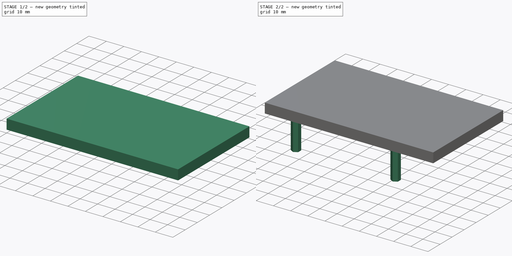
[diagram: build sequence overview — one tinted view per stage of 2, left to right]
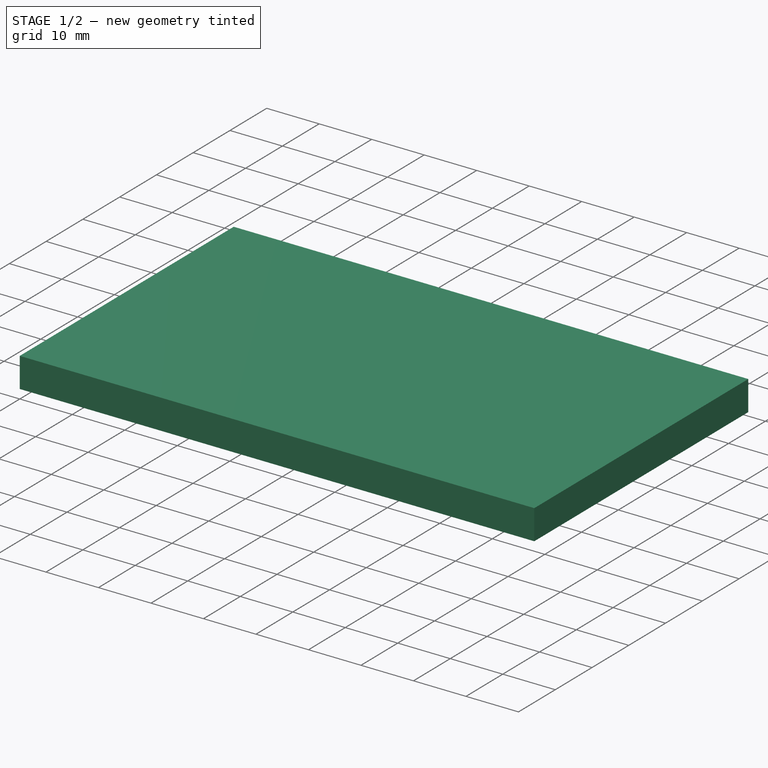
[diagram: stage 1 of 2 — iso view after this stage's code; geometry added in this stage tinted green]
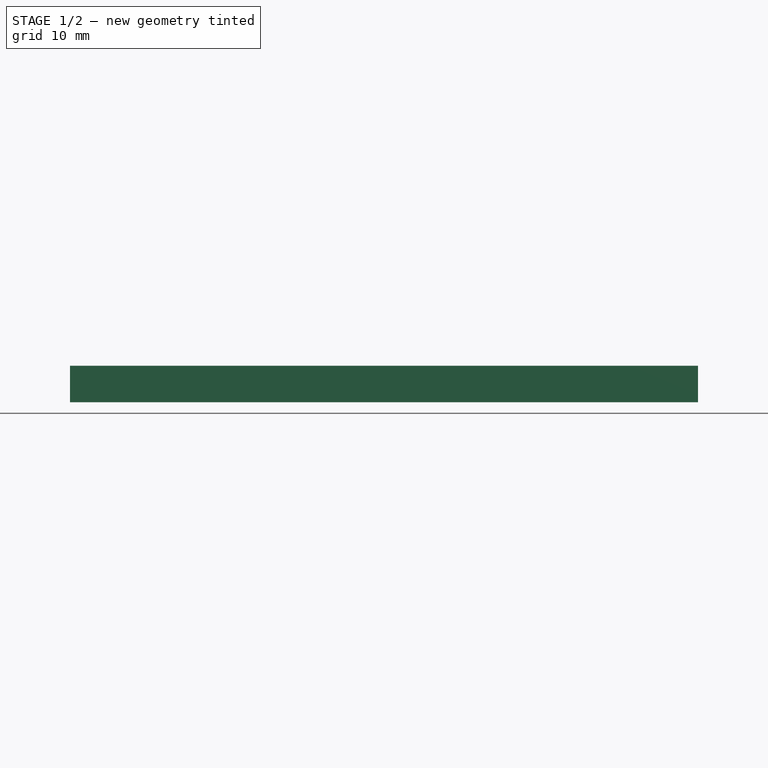
[diagram: stage 1 of 2 — front view after this stage's code; geometry added in this stage tinted green]
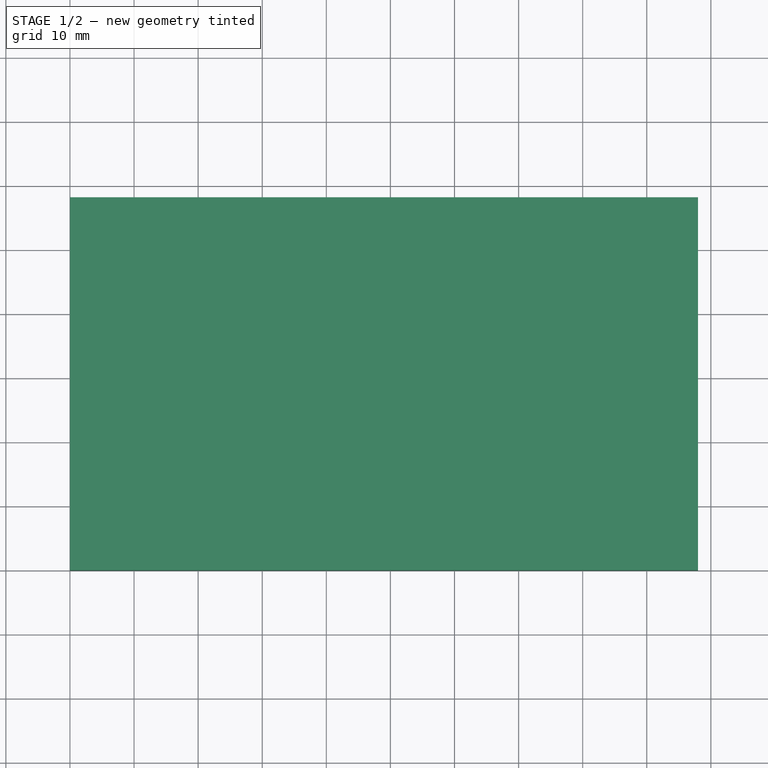
[diagram: stage 1 of 2 — top view after this stage's code; geometry added in this stage tinted green]
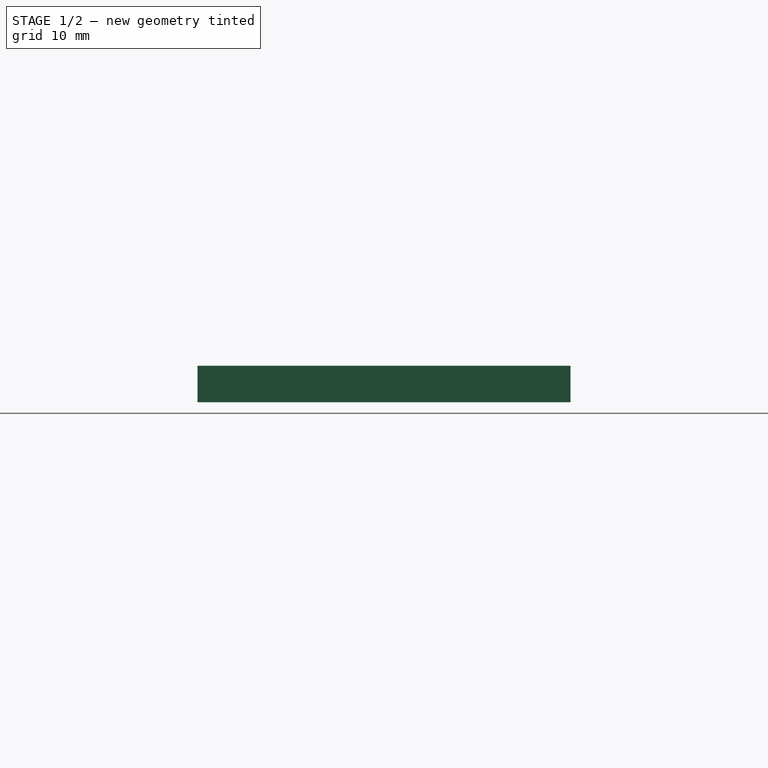
[diagram: stage 1 of 2 — right view after this stage's code; geometry added in this stage tinted green]
FCSTD DOCUMENT  (FreeCAD 0.19R24366 (Git))
Label: hyperpixel
License: All rights reserved
LicenseURL: http://en.wikipedia.org/wiki/All_rights_reserved
objects: Sketcher::SketchObject×2, PartDesign::Pad×2, PartDesign::CoordinateSystem×1, PartDesign::Body×1, App::Part×1
note: 8 computed .brp shape members not serialized (recipe doc carries the construction recipe); baked Part::Feature solids carry a one-line shape summary decoded from their .brp
EXTERNAL_REF file=../master.FCStd obj=Spreadsheet

FEATURE [Sketcher::SketchObject] Sketch  label="edges_sketch"
  FullyConstrained = true
  MapMode = 5
  Support = -> [XY_Plane]
  expr: Constraints[10] = <<master>>#<<inputs>>.hyperpixel_height
  expr: Constraints[9] = <<master>>#<<inputs>>.hyperpixel_width
  sketch-geometry (4):
    g0: LineSegment StartX=0 StartY=0 StartZ=0 EndX=98 EndY=0 EndZ=0
    g1: LineSegment StartX=98 StartY=0 StartZ=0 EndX=98 EndY=58.2 EndZ=0
    g2: LineSegment StartX=98 StartY=58.2 StartZ=0 EndX=0 EndY=58.2 EndZ=0
    g3: LineSegment StartX=0 StartY=58.2 StartZ=0 EndX=0 EndY=0 EndZ=0
  constraints (11):
    c: Coincident(g0,g1)
    c: Coincident(g1,g2)
    c: Coincident(g2,g3)
    c: Coincident(g3,g0)
    c: Horizontal(g0)
    c: Horizontal(g2)
    c: Vertical(g1)
    c: Vertical(g3)
    c: Coincident(g0,g-1)
    c: DistanceX(g0,g0) = 98
    c: DistanceY(g3,g3) = 58.2
FEATURE [PartDesign::Pad] Pad  label="edges_pad"
  Direction = (1,1,1)
  Length = 5.7
  Length2 = 100
  Profile = -> Sketch
  Type = 0
  expr: Length = <<master>>#<<inputs>>.hyperpixel_depth
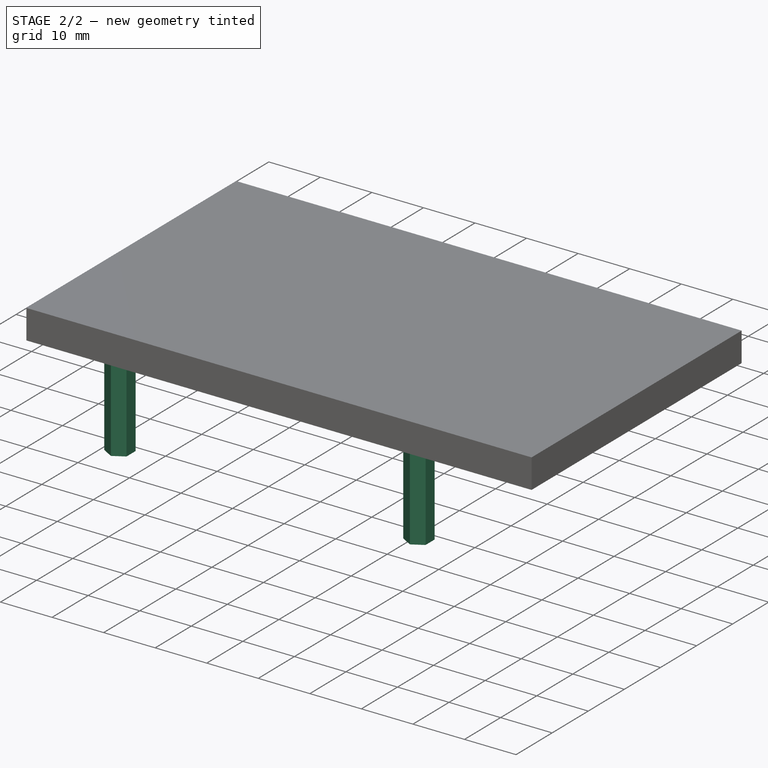
[diagram: stage 2 of 2 — iso view after this stage's code; geometry added in this stage tinted green]
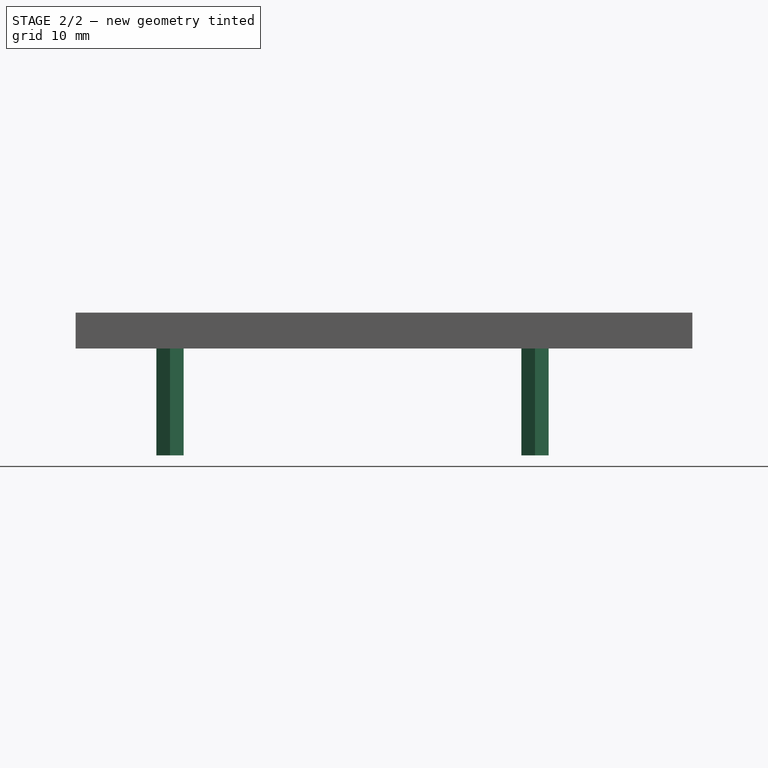
[diagram: stage 2 of 2 — front view after this stage's code; geometry added in this stage tinted green]
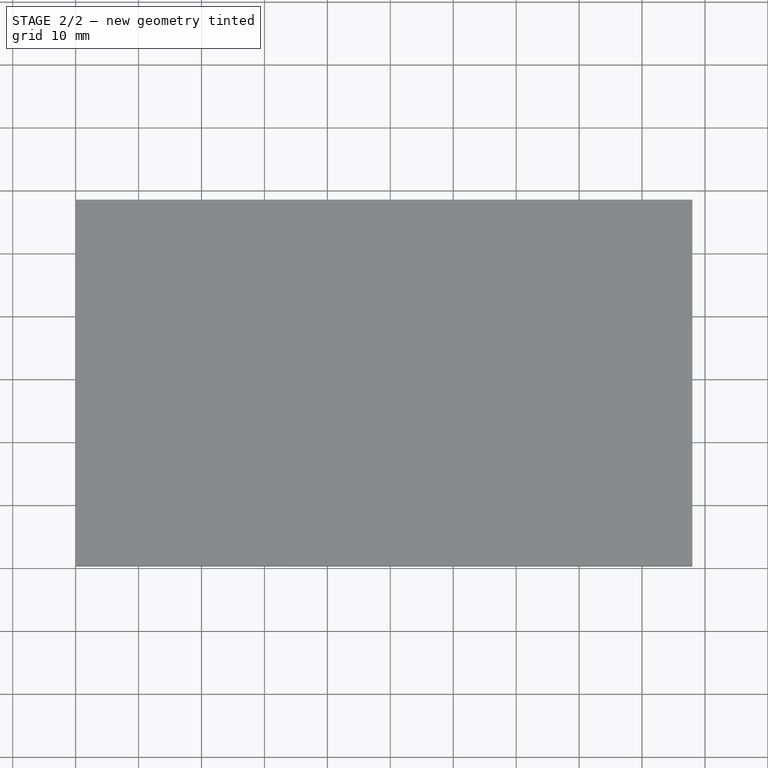
[diagram: stage 2 of 2 — top view after this stage's code; geometry added in this stage tinted green]
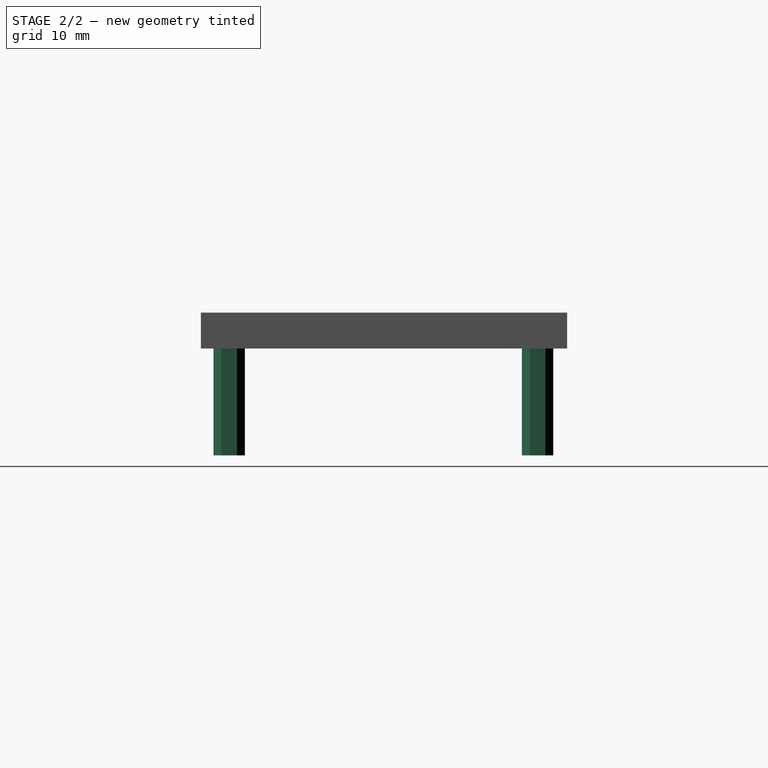
[diagram: stage 2 of 2 — right view after this stage's code; geometry added in this stage tinted green]
FEATURE [PartDesign::CoordinateSystem] LCS_0  label="hyperpixel_lcs"
  AttacherType = Attacher::AttachEngine3D
  MapMode = 2
  Support = -> [X_Axis001]
FEATURE [Sketcher::SketchObject] Sketch001  label="standoffs_sketch"
  FullyConstrained = true
  MapMode = 5
  Support = -> [XY_Plane]
  expr: Constraints[0] = <<master>>#<<inputs>>.hyperpixel_standoff_diameter / 2
  expr: Constraints[1] = <<master>>#<<inputs>>.hyperpixel_right_hole_padding
  expr: Constraints[2] = <<master>>#<<inputs>>.hyperpixel_top_hole_padding
  expr: Constraints[10] = <<master>>#<<inputs>>.hyperpixel_width - <<master>>#<<inputs>>.hyperpixel_left_hole_padding
  expr: Constraints[6] = <<master>>#<<inputs>>.hyperpixel_right_hole_padding
  expr: Constraints[7] = <<master>>#<<inputs>>.hyperpixel_height - <<master>>#<<inputs>>.hyperpixel_bottom_hole_padding
  expr: Constraints[8] = <<master>>#<<inputs>>.hyperpixel_height - <<master>>#<<inputs>>.hyperpixel_bottom_hole_padding
  expr: Constraints[9] = <<master>>#<<inputs>>.hyperpixel_top_hole_padding
  expr: Constraints[11] = <<master>>#<<inputs>>.hyperpixel_width - <<master>>#<<inputs>>.hyperpixel_left_hole_padding
  sketch-geometry (32):
    g0: Circle CenterX=15 CenterY=4.5 CenterZ=0 NormalX=0 NormalY=0 NormalZ=1 AngleXU=0 Radius=2.5
    g1: Circle CenterX=73 CenterY=4.5 CenterZ=0 NormalX=0 NormalY=0 NormalZ=1 AngleXU=0 Radius=2.5
    g2: Circle CenterX=73 CenterY=53.5 CenterZ=0 NormalX=0 NormalY=0 NormalZ=1 AngleXU=0 Radius=2.5
    g3: Circle CenterX=15 CenterY=53.5 CenterZ=0 NormalX=0 NormalY=0 NormalZ=1 AngleXU=0 Radius=2.5
    g4: LineSegment StartX=75.1651 StartY=54.75 StartZ=0 EndX=73 EndY=56 EndZ=0
    g5: LineSegment StartX=73 StartY=56 StartZ=0 EndX=70.8349 EndY=54.75 EndZ=0
    g6: LineSegment StartX=70.8349 StartY=54.75 StartZ=0 EndX=70.8349 EndY=52.25 EndZ=0
    g7: LineSegment StartX=70.8349 StartY=52.25 StartZ=0 EndX=73 EndY=51 EndZ=0
    g8: LineSegment StartX=73 StartY=51 StartZ=0 EndX=75.1651 EndY=52.25 EndZ=0
    g9: LineSegment StartX=75.1651 StartY=52.25 StartZ=0 EndX=75.1651 EndY=54.75 EndZ=0
    g10: Circle CenterX=73 CenterY=53.5 CenterZ=0 NormalX=0 NormalY=0 NormalZ=1 AngleXU=0 Radius=2.5
    g11: LineSegment StartX=12.8349 StartY=54.75 StartZ=0 EndX=12.8349 EndY=52.25 EndZ=0
    g12: LineSegment StartX=12.8349 StartY=52.25 StartZ=0 EndX=15 EndY=51 EndZ=0
    g13: LineSegment StartX=15 StartY=51 StartZ=0 EndX=17.1651 EndY=52.25 EndZ=0
    g14: LineSegment StartX=17.1651 StartY=52.25 StartZ=0 EndX=17.1651 EndY=54.75 EndZ=0
    g15: LineSegment StartX=17.1651 StartY=54.75 StartZ=0 EndX=15 EndY=56 EndZ=0
    g16: LineSegment StartX=15 StartY=56 StartZ=0 EndX=12.8349 EndY=54.75 EndZ=0
    g17: Circle CenterX=15 CenterY=53.5 CenterZ=0 NormalX=0 NormalY=0 NormalZ=1 AngleXU=0 Radius=2.5
    g18: LineSegment StartX=12.8349 StartY=5.75 StartZ=0 EndX=12.8349 EndY=3.25 EndZ=0
    g19: LineSegment StartX=12.8349 StartY=3.25 StartZ=0 EndX=15 EndY=2 EndZ=0
    g20: LineSegment StartX=15 StartY=2 StartZ=0 EndX=17.1651 EndY=3.25 EndZ=0
    g21: LineSegment StartX=17.1651 StartY=3.25 StartZ=0 EndX=17.1651 EndY=5.75 EndZ=0
    g22: LineSegment StartX=17.1651 StartY=5.75 StartZ=0 EndX=15 EndY=7 EndZ=0
    g23: LineSegment StartX=15 StartY=7 StartZ=0 EndX=12.8349 EndY=5.75 EndZ=0
    g24: Circle CenterX=15 CenterY=4.5 CenterZ=0 NormalX=0 NormalY=0 NormalZ=1 AngleXU=0 Radius=2.5
    g25: LineSegment StartX=70.8349 StartY=5.75 StartZ=0 EndX=70.8349 EndY=3.25 EndZ=0
    g26: LineSegment StartX=70.8349 StartY=3.25 StartZ=0 EndX=73 EndY=2 EndZ=0
    g27: LineSegment StartX=73 StartY=2 StartZ=0 EndX=75.1651 EndY=3.25 EndZ=0
    g28: LineSegment StartX=75.1651 StartY=3.25 StartZ=0 EndX=75.1651 EndY=5.75 EndZ=0
    g29: LineSegment StartX=75.1651 StartY=5.75 StartZ=0 EndX=73 EndY=7 EndZ=0
    g30: LineSegment StartX=73 StartY=7 StartZ=0 EndX=70.8349 EndY=5.75 EndZ=0
    g31: Circle CenterX=73 CenterY=4.5 CenterZ=0 NormalX=0 NormalY=0 NormalZ=1 AngleXU=0 Radius=2.5
  constraints (76):
    c: Radius(g0) = 2.5
    c: DistanceX(g-1,g0) = 15
    c: DistanceY(g-1,g0) = 4.5
    c: Equal(g3,g0)
    c: Equal(g0,g2)
    c: Equal(g0,g1)
    c: DistanceX(g-1,g3) = 15
    c: DistanceY(g-1,g3) = 53.5
    c: DistanceY(g-1,g2) = 53.5
    c: DistanceY(g-1,g1) = 4.5
    c: DistanceX(g-1,g1) = 73
    c: DistanceX(g-1,g2) = 73
    c: Coincident(g4,g5)
    c: Coincident(g5,g6)
    c: Coincident(g6,g7)
    c: Coincident(g7,g8)
    c: Coincident(g8,g9)
    c: Coincident(g9,g4)
    c: Equal(g4, g5-g9) x5
    c: PointOnObject(g4,g10)
    c: PointOnObject(g5,g10)
    c: PointOnObject(g6,g10)
    c: PointOnObject(g7,g10)
    c: PointOnObject(g8,g10)
    c: PointOnObject(g9,g10)
    c: Coincident(g10,g2)
    c: PointOnObject(g9,g2)
    c: Parallel(g9,g-2)
    c: Coincident(g11,g12)
    c: Coincident(g12,g13)
    c: Coincident(g13,g14)
    c: Coincident(g14,g15)
    c: Coincident(g15,g16)
    c: Coincident(g16,g11)
    c: Equal(g11, g12-g16) x5
    c: PointOnObject(g11,g17)
    c: PointOnObject(g12,g17)
    c: PointOnObject(g13,g17)
    c: PointOnObject(g14,g17)
    c: PointOnObject(g15,g17)
    c: PointOnObject(g16,g17)
    c: Coincident(g17,g3)
    c: PointOnObject(g16,g3)
    c: Coincident(g18,g19)
    c: Coincident(g19,g20)
    c: Coincident(g20,g21)
    c: Coincident(g21,g22)
    c: Coincident(g22,g23)
    c: Coincident(g23,g18)
    c: Equal(g18, g19-g23) x5
    c: PointOnObject(g18,g24)
    c: PointOnObject(g19,g24)
    c: PointOnObject(g20,g24)
    c: PointOnObject(g21,g24)
    c: PointOnObject(g22,g24)
    c: PointOnObject(g23,g24)
    c: Coincident(g24,g0)
    c: PointOnObject(g23,g0)
    c: Coincident(g25,g26)
    c: Coincident(g26,g27)
    c: Coincident(g27,g28)
    c: Coincident(g28,g29)
    c: Coincident(g29,g30)
    c: Coincident(g30,g25)
    c: Equal(g25, g26-g30) x5
    c: PointOnObject(g25,g31)
    c: PointOnObject(g26,g31)
    c: PointOnObject(g27,g31)
    c: PointOnObject(g28,g31)
    c: PointOnObject(g29,g31)
    c: PointOnObject(g30,g31)
    c: Coincident(g31,g1)
    c: PointOnObject(g30,g1)
    c: Parallel(g18,g-2)
    c: Parallel(g11,g-2)
    c: Parallel(g28,g-2)
FEATURE [PartDesign::Pad] Pad001  label="standoffs_pad"
  BaseFeature = -> Pad
  Direction = (1,1,1)
  Length = 17
  Length2 = 100
  Profile = -> Sketch001
  Reversed = true
  Type = 0
  expr: Length = <<master>>#<<inputs>>.hyperpixel_standoff_height
FEATURE [PartDesign::Body] Body  label="hyperpixel_body"
  Group = -> [Sketch,Pad,Sketch001,Pad001]
  Origin = -> Origin
  Placement = pos=(0,0,0) rot=(0,0,1;3.14159rad)
  Tip = -> Pad001
FEATURE [App::Part] Part  label="hyperpixel_part"
  Group = -> [LCS_0,Body]
  Origin = -> Origin001
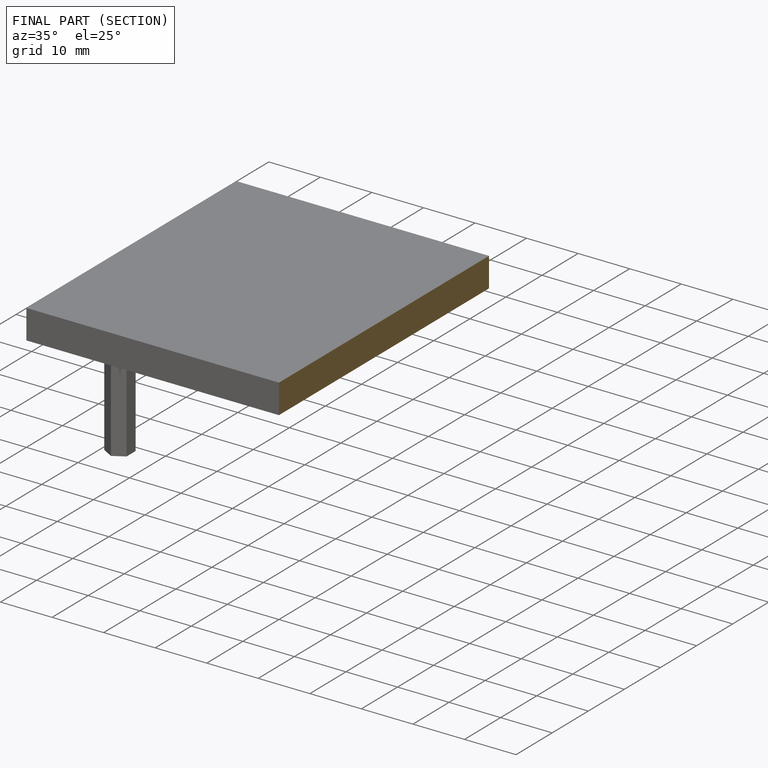
[diagram: finished part — half-section view (interior)]
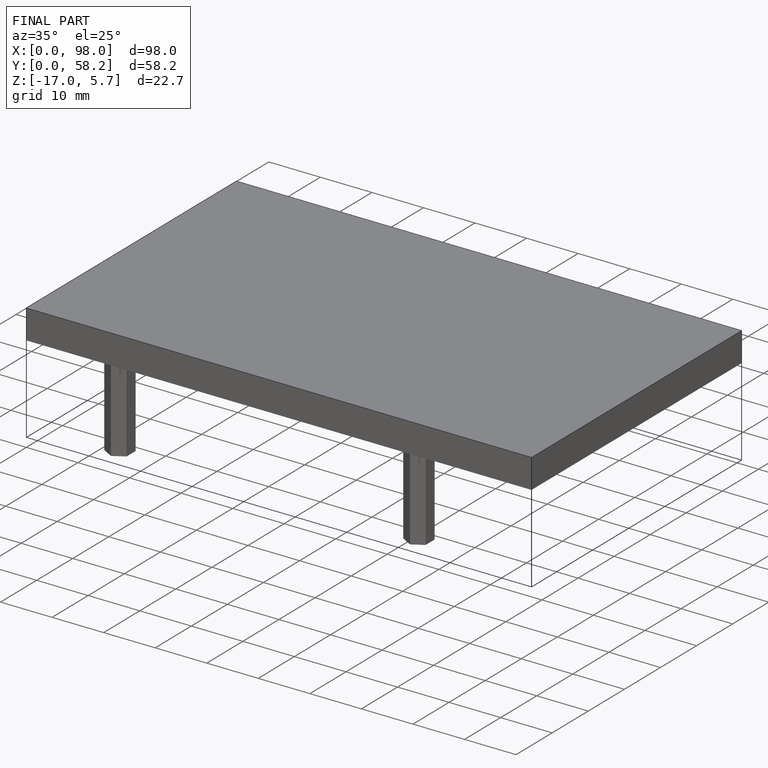
[diagram: finished part — iso view with bounding-box wireframe]
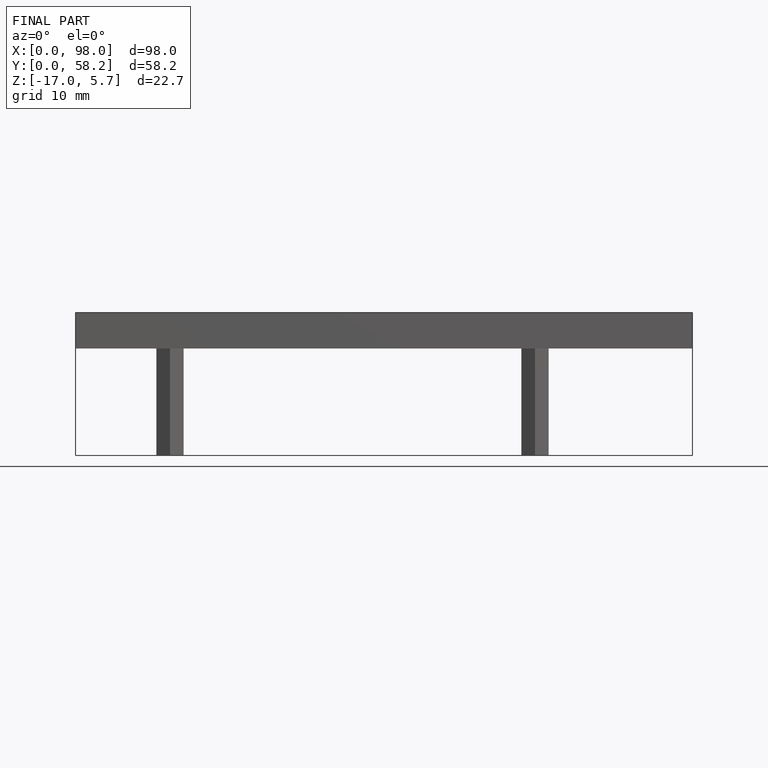
[diagram: finished part — front view with bounding-box wireframe]
